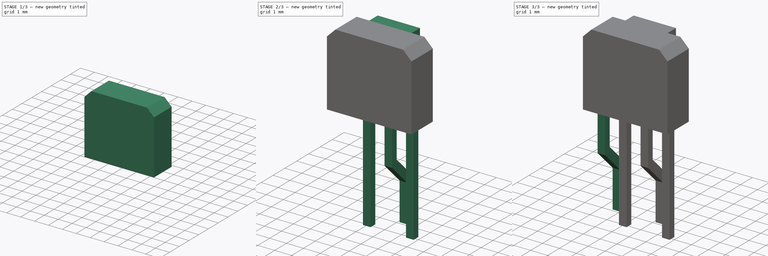
[diagram: build sequence overview — one tinted view per stage of 3, left to right]
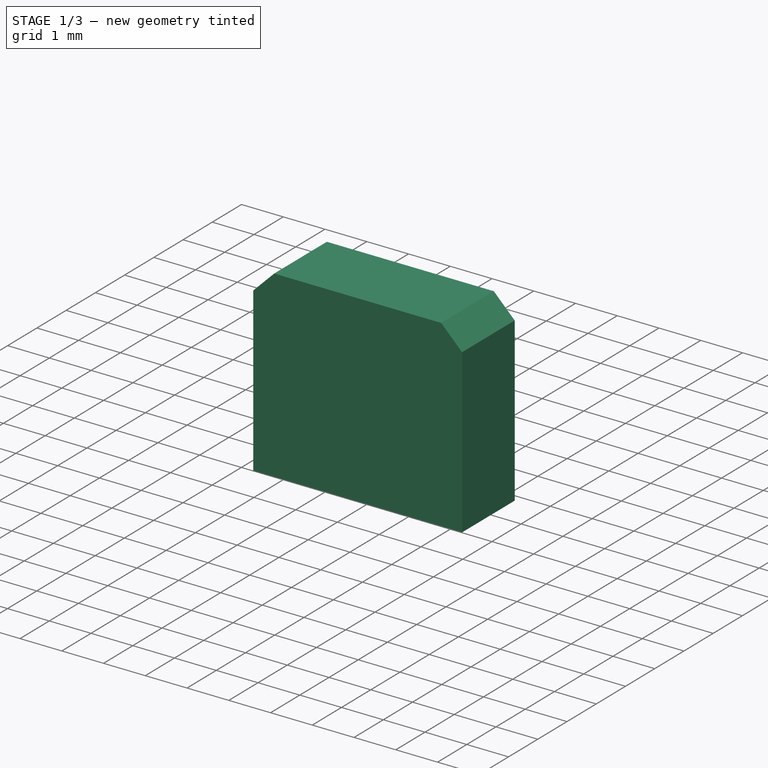
[diagram: stage 1 of 3 — iso view after this stage's code; geometry added in this stage tinted green]
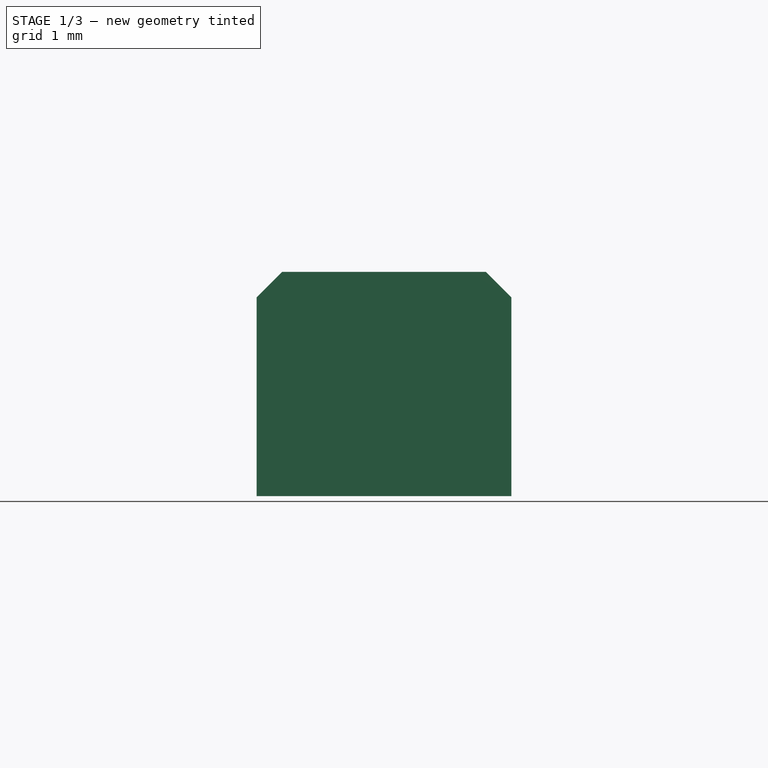
[diagram: stage 1 of 3 — front view after this stage's code; geometry added in this stage tinted green]
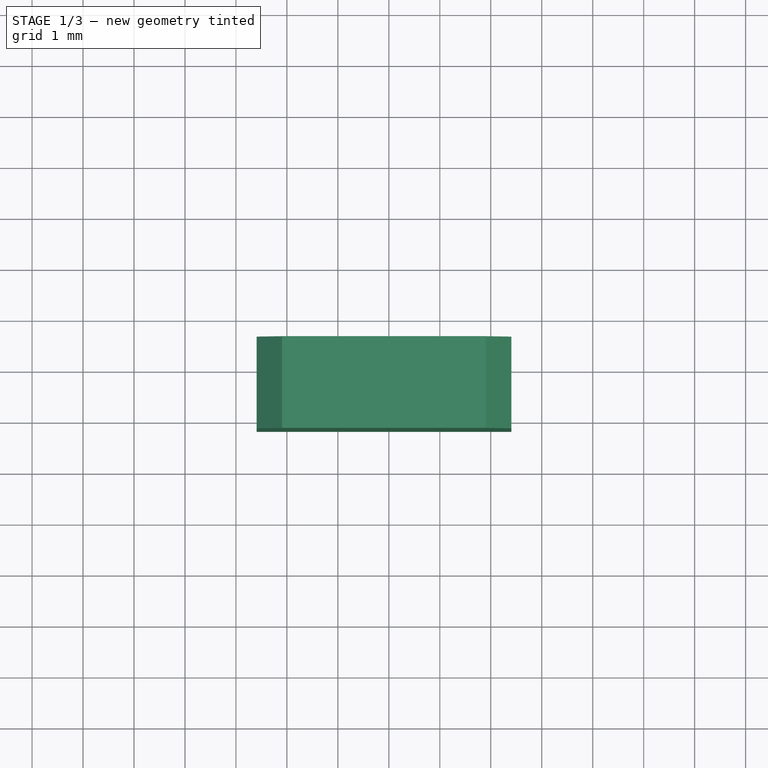
[diagram: stage 1 of 3 — top view after this stage's code; geometry added in this stage tinted green]
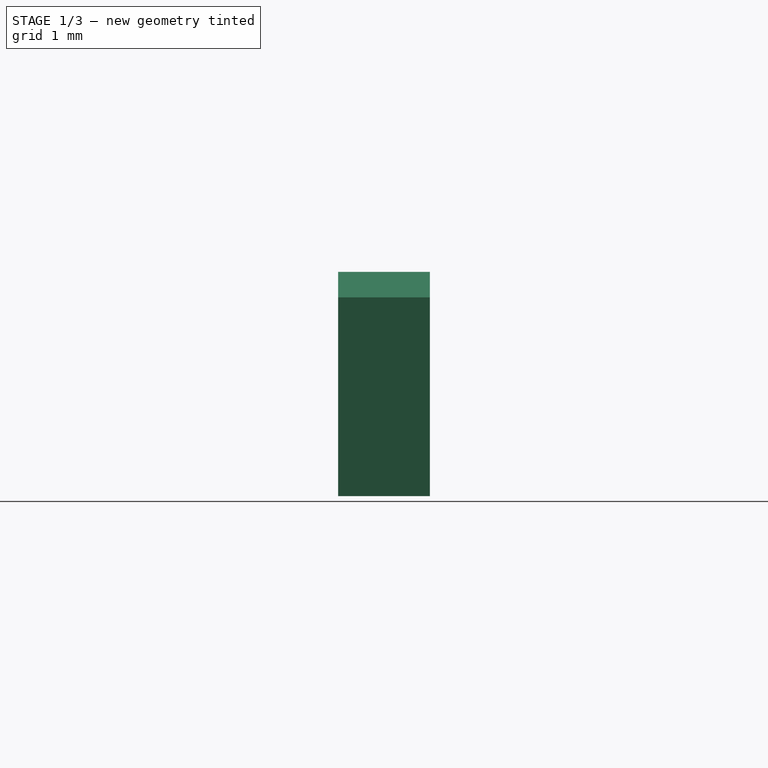
[diagram: stage 1 of 3 — right view after this stage's code; geometry added in this stage tinted green]
FCSTD DOCUMENT  (FreeCAD 0.16R6712 (Git))
Label: Sharp_IS471F
License: All rights reserved
LicenseURL: http://en.wikipedia.org/wiki/All_rights_reserved
objects: Sketcher::SketchObject×5, PartDesign::Pad×5, PartDesign::Chamfer×1, Part::MultiFuse×1
note: 17 computed .brp shape members not serialized (recipe doc carries the construction recipe); baked Part::Feature solids carry a one-line shape summary decoded from their .brp

FEATURE [PartDesign::Pad] Pad004
  Length = 4.4
  Length2 = 100
  Placement = pos=(0,0,3.8) rot=(0,0,1;0rad)
  Sketch = -> Sketch
  Type = 0
FEATURE [PartDesign::Chamfer] Chamfer
  Base = -> Pad004 [Edge7,Edge12]
  Placement = pos=(0,0,3.8) rot=(0,0,1;0rad)
  Size = 0.5
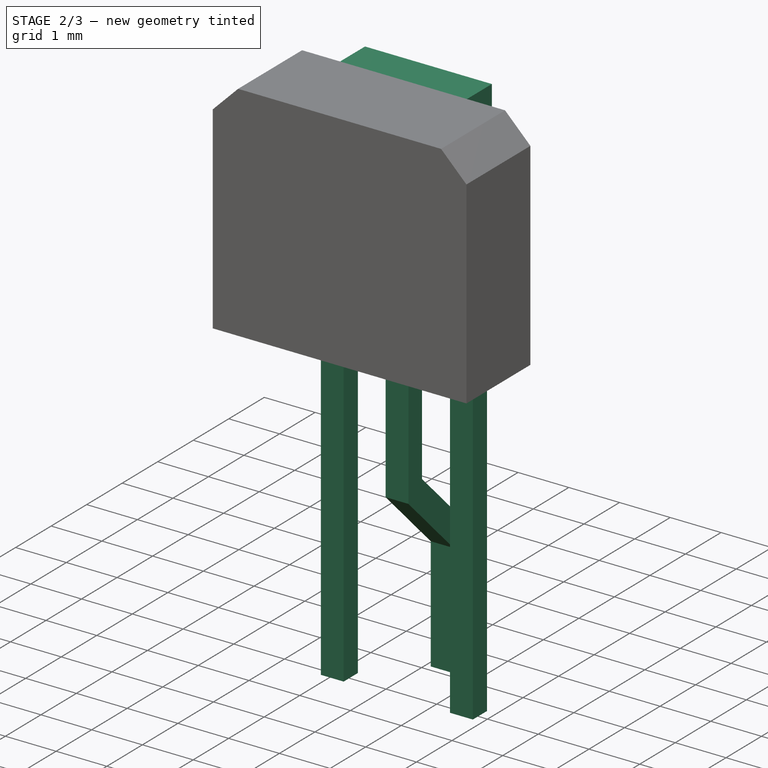
[diagram: stage 2 of 3 — iso view after this stage's code; geometry added in this stage tinted green]
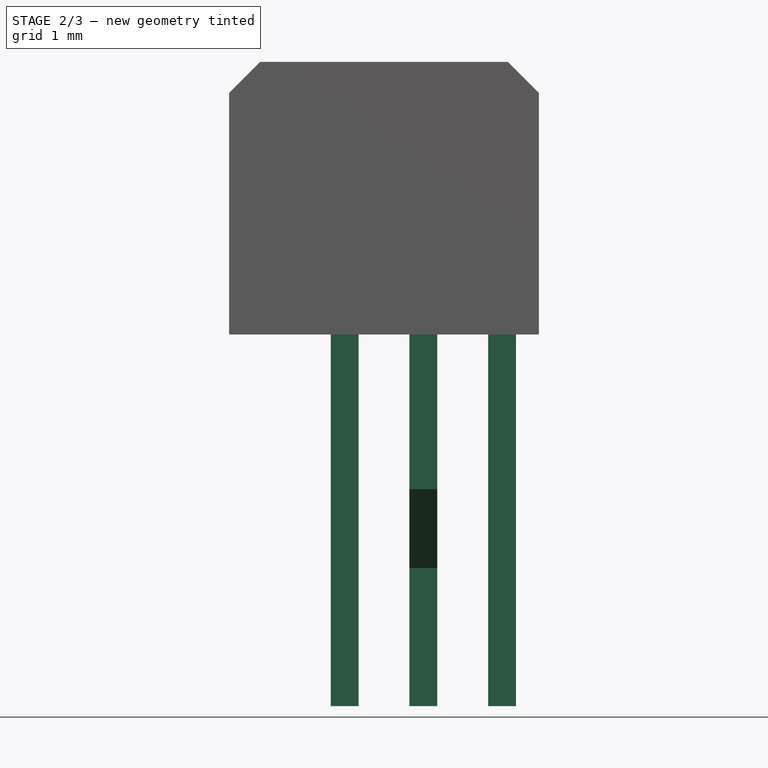
[diagram: stage 2 of 3 — front view after this stage's code; geometry added in this stage tinted green]
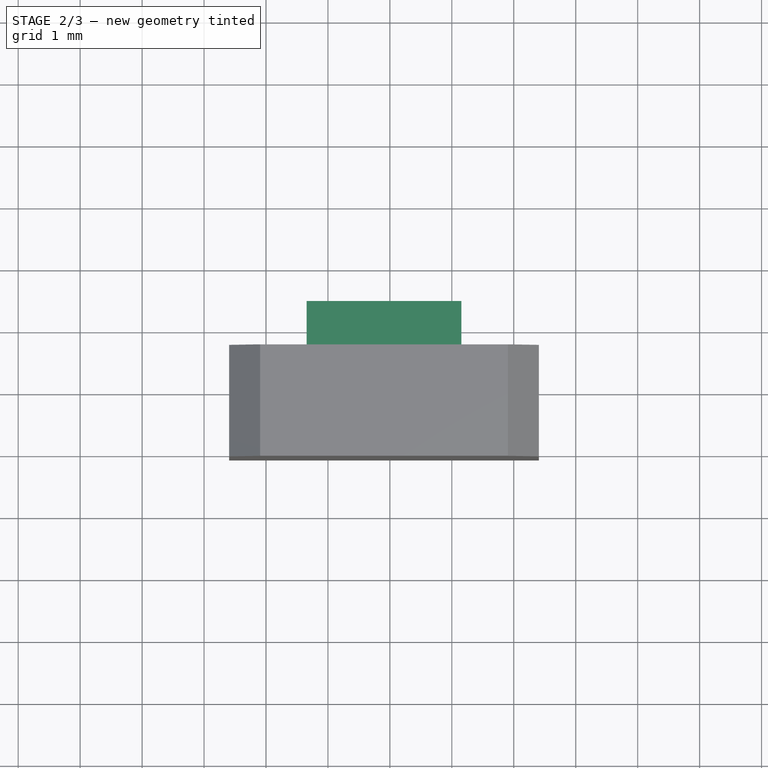
[diagram: stage 2 of 3 — top view after this stage's code; geometry added in this stage tinted green]
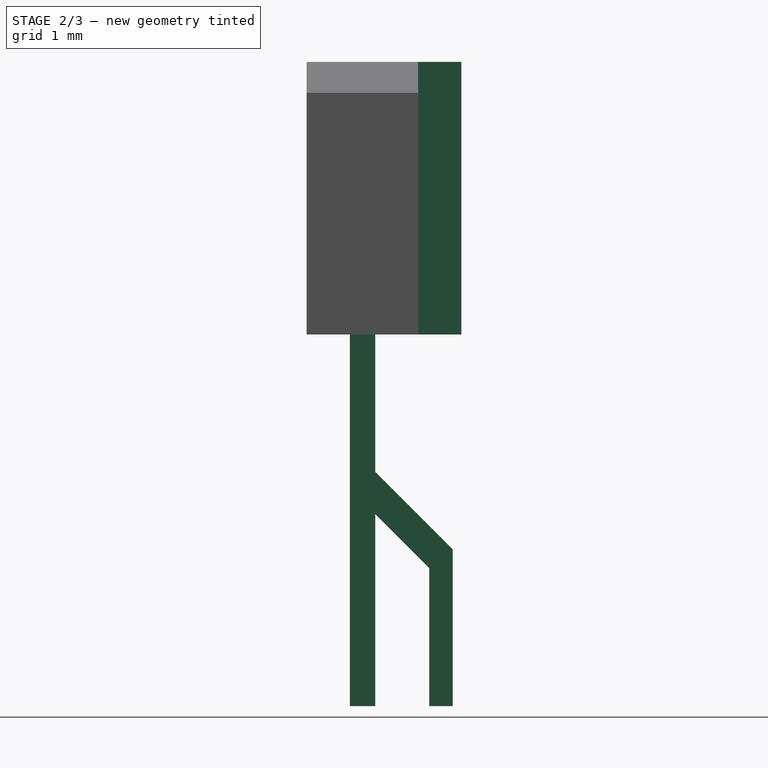
[diagram: stage 2 of 3 — right view after this stage's code; geometry added in this stage tinted green]
FEATURE [Sketcher::SketchObject] Sketch
  Placement = pos=(0,0,3.8) rot=(0,0,1;0rad)
  sketch-geometry (5):
    g0: LineSegment StartX=-0.595 StartY=-0.37 StartZ=0 EndX=4.405 EndY=-0.37 EndZ=0
    g1: LineSegment StartX=4.405 StartY=-0.37 StartZ=0 EndX=4.405 EndY=-2.17 EndZ=0
    g2: LineSegment StartX=4.405 StartY=-2.17 StartZ=0 EndX=-0.595 EndY=-2.17 EndZ=0
    g3: LineSegment StartX=-0.595 StartY=-2.17 StartZ=0 EndX=-0.595 EndY=-0.37 EndZ=0
    g4: GeomPoint [constr] X=-0.595 Y=-1.27 Z=0
  constraints (13):
    c: Coincident(g0,g1)
    c: Coincident(g1,g2)
    c: Coincident(g2,g3)
    c: Coincident(g3,g0)
    c: Horizontal(g0)
    c: Horizontal(g2)
    c: Vertical(g1)
    c: Vertical(g3)
    c: DistanceX(g0,g0) = 5
    c: DistanceY(g3,g3) = 1.8
    c: PointOnObject(g4,g3)
    c: Symmetric(g3,g3,g4)
    c: DistanceY(g4,g-1) = 1.27
FEATURE [Sketcher::SketchObject] Sketch003
  Placement = pos=(2.54,-1.27,0) rot=(0.57735,0.57735,0.57735;2.0944rad)
  sketch-geometry (9):
    g0: LineSegment StartX=-0.19 StartY=3.8 StartZ=0 EndX=0.19 EndY=3.8 EndZ=0
    g1: LineSegment StartX=0.19 StartY=3.8 StartZ=0 EndX=0.19 EndY=1.6 EndZ=0
    g2: LineSegment StartX=-0.19 StartY=1.3 StartZ=0 EndX=-0.19 EndY=3.8 EndZ=0
    g3: LineSegment StartX=1.46 StartY=0.33 StartZ=0 EndX=1.46 EndY=-2.2 EndZ=0
    g4: LineSegment StartX=1.46 StartY=-2.2 StartZ=0 EndX=1.08 EndY=-2.2 EndZ=0
    g5: LineSegment StartX=1.08 StartY=-2.2 StartZ=0 EndX=1.08 EndY=0.03 EndZ=0
    g6: GeomPoint [constr] X=0 Y=3.8 Z=0
    g7: LineSegment StartX=-0.19 StartY=1.3 StartZ=0 EndX=1.08 EndY=0.03 EndZ=0
    g8: LineSegment StartX=0.19 StartY=1.6 StartZ=0 EndX=1.46 EndY=0.33 EndZ=0
  constraints (26):
    c: Coincident(g0,g1)
    c: Coincident(g2,g0)
    c: Horizontal(g0)
    c: Vertical(g1)
    c: Vertical(g2)
    c: Coincident(g3,g4)
    c: Coincident(g4,g5)
    c: Horizontal(g4)
    c: Vertical(g3)
    c: Vertical(g5)
    c: PointOnObject(g6,g0)
    c: Symmetric(g0,g0,g6)
    c: PointOnObject(g6,g-2)
    c: Equal(g0,g4)
    c: DistanceY(g3,g0) = 6
    c: DistanceY(g2,g0) = 2.5
    c: Coincident(g7,g2)
    c: Coincident(g7,g5)
    c: Coincident(g8,g1)
    c: Coincident(g8,g3)
    c: DistanceY(g1,g0) = 2.2
    c: DistanceX(g2,g4) = 1.27
    c: DistanceX(g0,g0) = 0.38
    c: Parallel(g8,g7)
    c: DistanceY(g-1,g0) = 3.8
    c: DistanceY(g-1,g5) = 0.03
FEATURE [PartDesign::Pad] Pad003
  Length = 0.45
  Length2 = 100
  Midplane = true
  Placement = pos=(2.54,-1.27,0) rot=(0.57735,0.57735,0.57735;2.0944rad)
  Sketch = -> Sketch003
  Type = 0
FEATURE [Sketcher::SketchObject] Sketch004
  sketch-geometry (10):
    g0: LineSegment StartX=1.045 StartY=-1.07 StartZ=0 EndX=1.495 EndY=-1.07 EndZ=0
    g1: LineSegment StartX=1.495 StartY=-1.07 StartZ=0 EndX=1.495 EndY=-1.47 EndZ=0
    g2: LineSegment StartX=1.495 StartY=-1.47 StartZ=0 EndX=1.045 EndY=-1.47 EndZ=0
    g3: LineSegment StartX=1.045 StartY=-1.47 StartZ=0 EndX=1.045 EndY=-1.07 EndZ=0
    g4: LineSegment StartX=3.585 StartY=-1.0617 StartZ=0 EndX=4.035 EndY=-1.0617 EndZ=0
    g5: LineSegment StartX=4.035 StartY=-1.0617 StartZ=0 EndX=4.035 EndY=-1.4617 EndZ=0
    g6: LineSegment StartX=4.035 StartY=-1.4617 StartZ=0 EndX=3.585 EndY=-1.4617 EndZ=0
    g7: LineSegment StartX=3.585 StartY=-1.4617 StartZ=0 EndX=3.585 EndY=-1.0617 EndZ=0
    g8: GeomPoint [constr] X=1.27 Y=-1.47 Z=0
    g9: GeomPoint [constr] X=1.045 Y=-1.27 Z=0
  constraints (27):
    c: Coincident(g0,g1)
    c: Coincident(g1,g2)
    c: Coincident(g2,g3)
    c: Coincident(g3,g0)
    c: Horizontal(g0)
    c: Horizontal(g2)
    c: Vertical(g1)
    c: Vertical(g3)
    c: Coincident(g4,g5)
    c: Coincident(g5,g6)
    c: Coincident(g6,g7)
    c: Coincident(g7,g4)
    c: Horizontal(g4)
    c: Horizontal(g6)
    c: Vertical(g5)
    c: Vertical(g7)
    c: Equal(g4,g0)
    c: Equal(g1,g7)
    c: DistanceX(g2,g6) = 2.54
    c: PointOnObject(g8,g2)
    c: Symmetric(g2,g2,g8)
    c: DistanceX(g-1,g8) = 1.27
    c: PointOnObject(g9,g3)
    c: Symmetric(g3,g3,g9)
    c: DistanceY(g9,g-1) = 1.27
    c: DistanceX(g2,g2) = 0.45
    c: DistanceY(g1,g1) = 0.4
FEATURE [PartDesign::Pad] Pad
  Length = 3.8
  Length2 = 2.2
  Sketch = -> Sketch004
  Type = 4
FEATURE [Sketcher::SketchObject] Sketch005
  ExternalGeometry = -> [Chamfer]
  Placement = pos=(0,-0.37,3.8) rot=(0,0.707107,0.707107;3.14159rad)
  Support = -> Chamfer [Face1]
  sketch-geometry (6):
    g0: LineSegment StartX=-3.155 StartY=4.4 StartZ=0 EndX=-0.655 EndY=4.4 EndZ=0
    g1: LineSegment StartX=-0.655 StartY=4.4 StartZ=0 EndX=-0.655 EndY=0 EndZ=0
    g2: LineSegment StartX=-0.655 StartY=0 StartZ=0 EndX=-3.155 EndY=0 EndZ=0
    g3: LineSegment StartX=-3.155 StartY=0 StartZ=0 EndX=-3.155 EndY=4.4 EndZ=0
    g4: LineSegment [constr] StartX=-0.655 StartY=0 StartZ=0 EndX=0.595 EndY=0 EndZ=0
    g5: LineSegment [constr] StartX=-3.155 StartY=0 StartZ=0 EndX=-4.405 EndY=0 EndZ=0
  constraints (17):
    c: Coincident(g0,g1)
    c: Coincident(g1,g2)
    c: Coincident(g2,g3)
    c: Coincident(g3,g0)
    c: Horizontal(g0)
    c: Horizontal(g2)
    c: Vertical(g1)
    c: Vertical(g3)
    c: PointOnObject(g0,g-3)
    c: Coincident(g4,g1)
    c: Horizontal(g4)
    c: Coincident(g5,g2)
    c: Horizontal(g5)
    c: Equal(g5,g4)
    c: Coincident(g4,g-5)
    c: Coincident(g5,g-4)
    c: DistanceX(g2,g2) = 2.5
FEATURE [PartDesign::Pad] Pad005
  Length = 0.7
  Length2 = 100
  Placement = pos=(0,0,3.8) rot=(0,0,1;0rad)
  Sketch = -> Sketch005
  Type = 0
  expr: Length = 2.5 - 1.8
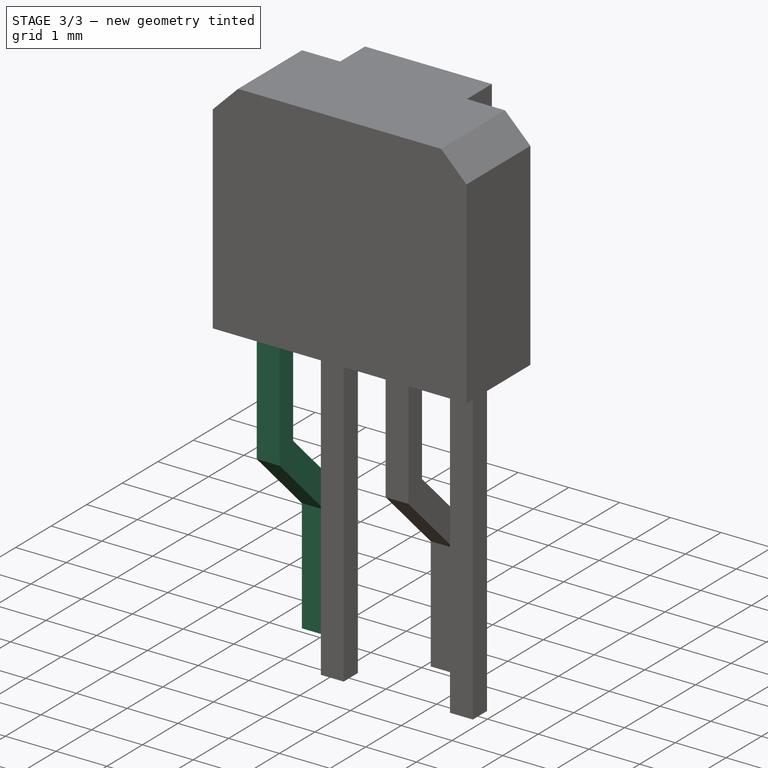
[diagram: stage 3 of 3 — iso view after this stage's code; geometry added in this stage tinted green]
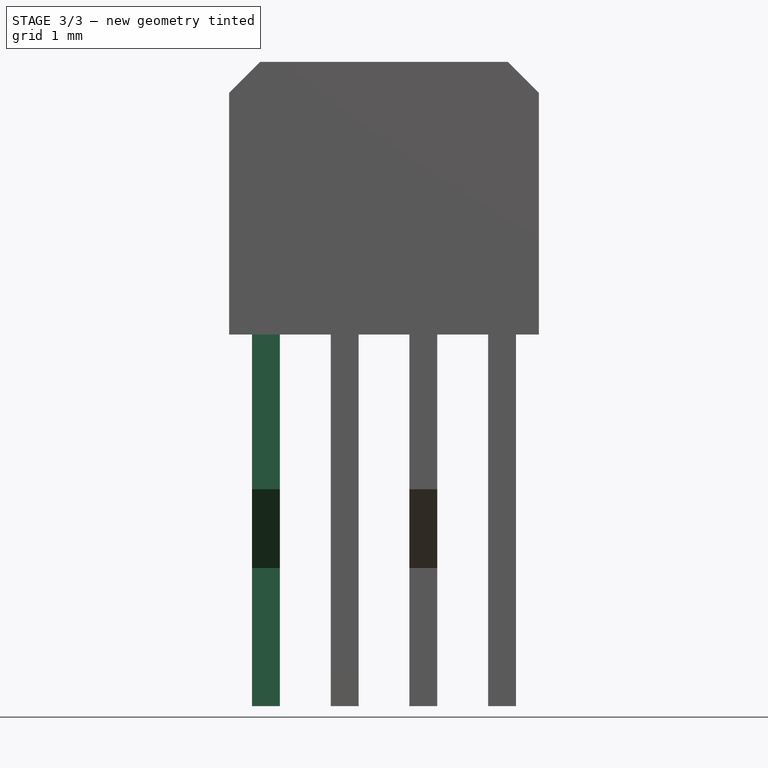
[diagram: stage 3 of 3 — front view after this stage's code; geometry added in this stage tinted green]
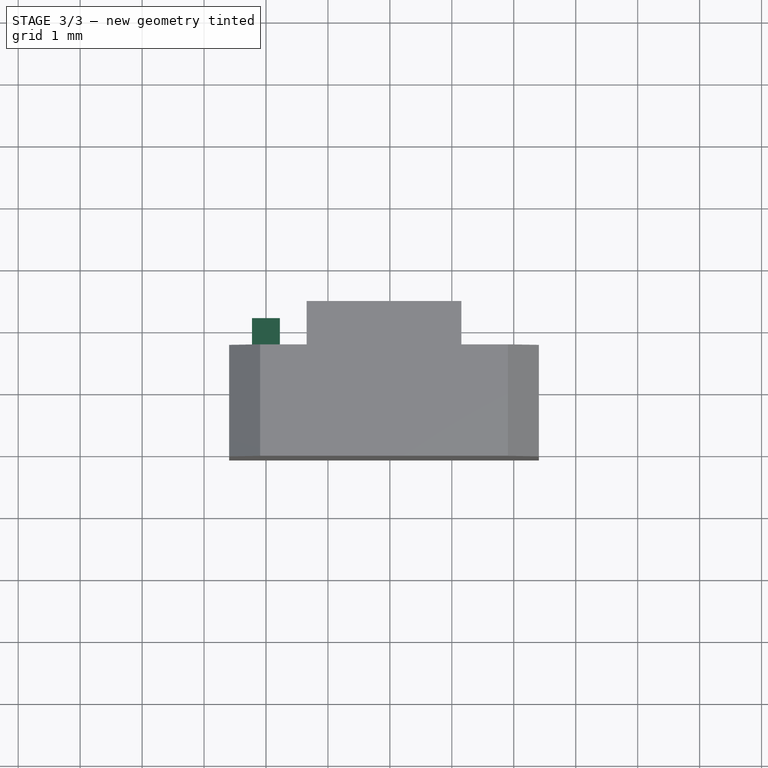
[diagram: stage 3 of 3 — top view after this stage's code; geometry added in this stage tinted green]
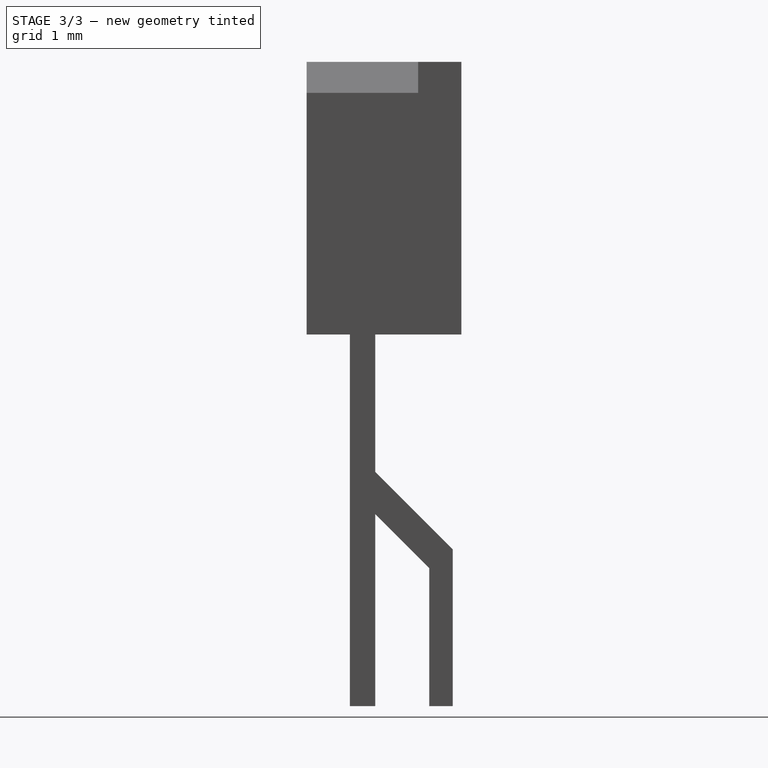
[diagram: stage 3 of 3 — right view after this stage's code; geometry added in this stage tinted green]
FEATURE [Sketcher::SketchObject] Sketch002
  Placement = pos=(0,-1.27,0) rot=(0.57735,0.57735,0.57735;2.0944rad)
  sketch-geometry (9):
    g0: LineSegment StartX=-0.19 StartY=3.8 StartZ=0 EndX=0.19 EndY=3.8 EndZ=0
    g1: LineSegment StartX=0.19 StartY=3.8 StartZ=0 EndX=0.19 EndY=1.6 EndZ=0
    g2: LineSegment StartX=-0.19 StartY=1.3 StartZ=0 EndX=-0.19 EndY=3.8 EndZ=0
    g3: LineSegment StartX=1.46 StartY=0.33 StartZ=0 EndX=1.46 EndY=-2.2 EndZ=0
    g4: LineSegment StartX=1.46 StartY=-2.2 StartZ=0 EndX=1.08 EndY=-2.2 EndZ=0
    g5: LineSegment StartX=1.08 StartY=-2.2 StartZ=0 EndX=1.08 EndY=0.03 EndZ=0
    g6: GeomPoint [constr] X=0 Y=3.8 Z=0
    g7: LineSegment StartX=-0.19 StartY=1.3 StartZ=0 EndX=1.08 EndY=0.03 EndZ=0
    g8: LineSegment StartX=0.19 StartY=1.6 StartZ=0 EndX=1.46 EndY=0.33 EndZ=0
  constraints (26):
    c: Coincident(g0,g1)
    c: Coincident(g2,g0)
    c: Horizontal(g0)
    c: Vertical(g1)
    c: Vertical(g2)
    c: Coincident(g3,g4)
    c: Coincident(g4,g5)
    c: Horizontal(g4)
    c: Vertical(g3)
    c: Vertical(g5)
    c: PointOnObject(g6,g0)
    c: Symmetric(g0,g0,g6)
    c: PointOnObject(g6,g-2)
    c: Equal(g0,g4)
    c: DistanceY(g3,g0) = 6
    c: DistanceY(g2,g0) = 2.5
    c: Coincident(g7,g2)
    c: Coincident(g7,g5)
    c: Coincident(g8,g1)
    c: Coincident(g8,g3)
    c: DistanceY(g1,g0) = 2.2
    c: DistanceX(g2,g4) = 1.27
    c: DistanceX(g0,g0) = 0.38
    c: Parallel(g8,g7)
    c: DistanceY(g-1,g0) = 3.8
    c: DistanceY(g-1,g5) = 0.03
FEATURE [PartDesign::Pad] Pad002
  Length = 0.45
  Length2 = 100
  Midplane = true
  Placement = pos=(0,-1.27,0) rot=(0.57735,0.57735,0.57735;2.0944rad)
  Sketch = -> Sketch002
  Type = 0
FEATURE [Part::MultiFuse] Pad005_mp_cp  label="Sharp_IS471F"
  Shapes = -> [Pad005,Pad,Pad003,Pad002]
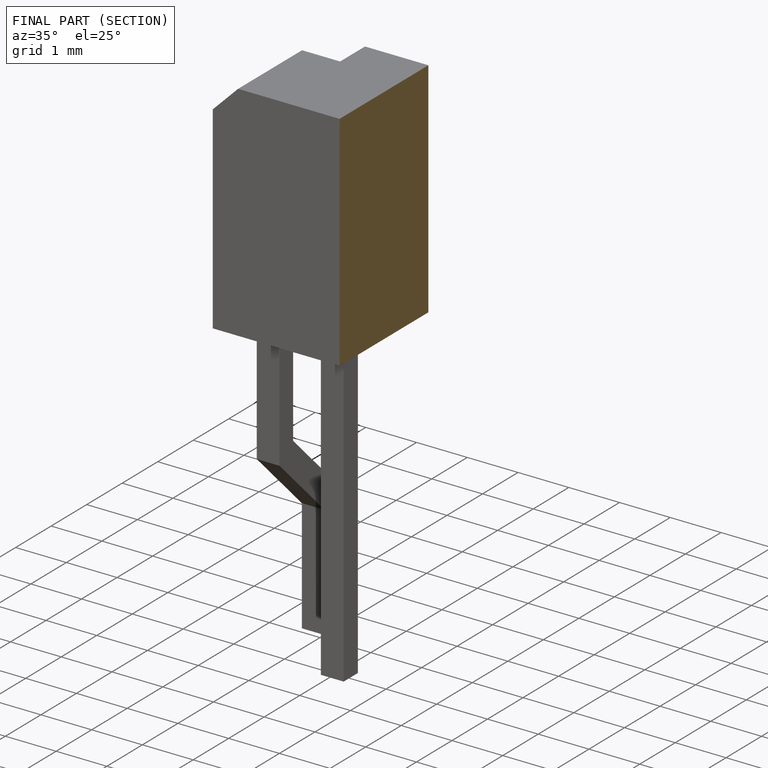
[diagram: finished part — half-section view (interior)]
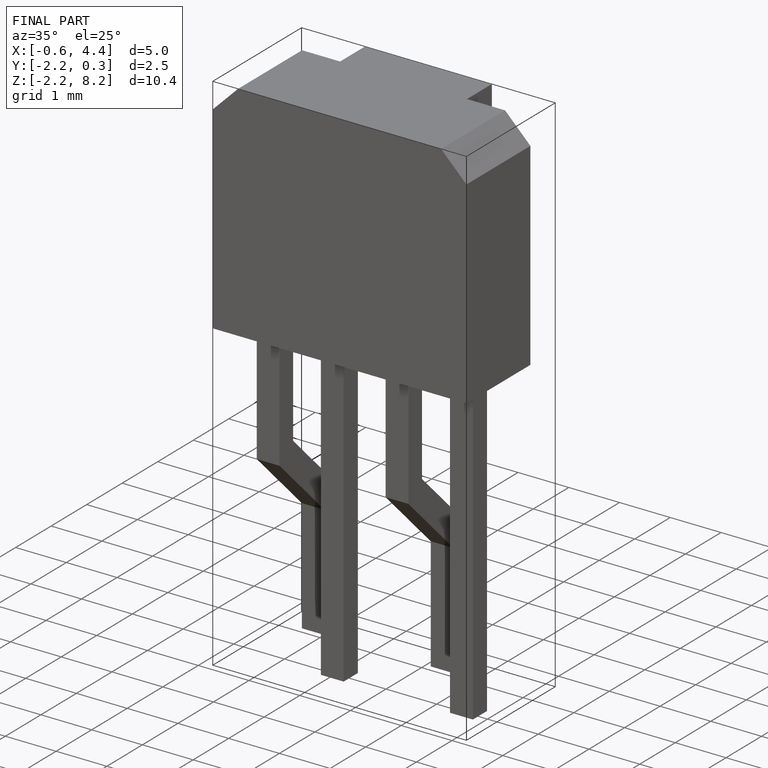
[diagram: finished part — iso view with bounding-box wireframe]
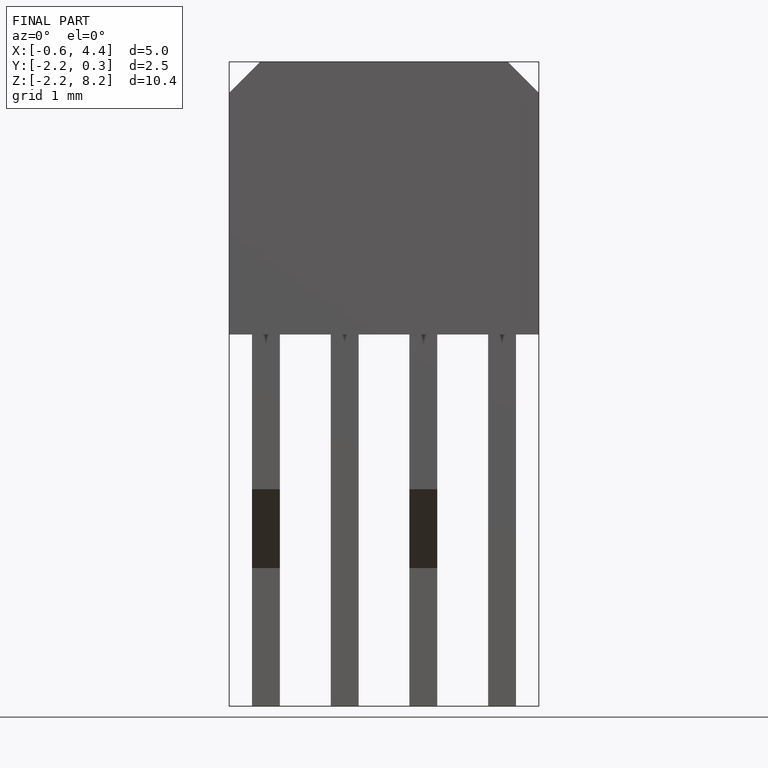
[diagram: finished part — front view with bounding-box wireframe]
